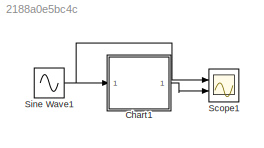
MODEL slx_2188a0e5bc4c
KIND model
CONFIG AbsTol = auto
CONFIG FixedStep = auto
CONFIG MaxStep = auto
CONFIG MinStep = auto
CONFIG RelTol = 1e-3
CONFIG SampleTimeConstraint = Unconstrained
CONFIG Solver = VariableStepAuto
CONFIG SolverMode = Auto
CONFIG SolverName = VariableStepAuto
CONFIG StartTime = 0.0
CONFIG StopTime = 10.0
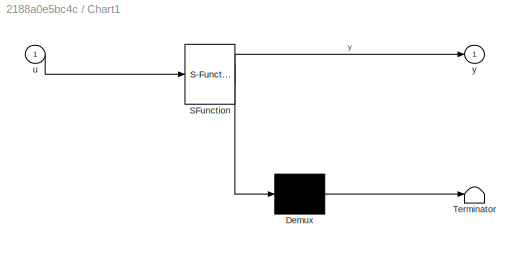
BLOCK [SubSystem] Chart1
  ErrorFcn = Stateflow.Translate.translate
  PermitHierarchicalResolution = ExplicitOnly
  Ports = [1, 1]
  RequestExecContextInheritance = off
  SFBlockType = Chart
  TreatAsAtomicUnit = on
  Variant = off
BLOCK [Demux] Chart1/ Demux 
  Outputs = 1
  Ports = [1, 1]
BLOCK [S-Function] Chart1/ SFunction 
  EnableBusSupport = on
  FunctionName = sf_sfun
  PortCounts = [1 2]
  Ports = [1, 2]
  SFunctionDeploymentMode = off
  Tag = Stateflow S-Function stateflow_junction 1
BLOCK [Terminator] Chart1/ Terminator 
BLOCK [Inport] Chart1/u
  IconDisplay = Port number
BLOCK [Outport] Chart1/y
  IconDisplay = Port number
BLOCK [Scope] Scope1
  NumInputPorts = 2
  Ports = [2]
  ScopeSpecificationString = C++SS(StrPVP('SaveName','ScopeData1'),StrPVP('LimitDataPoints','on'),StrPVP('DataFormat','Array'),StrPVP('Decimation','1'),StrPVP('BlockParamSampleInput','off'))
BLOCK [Sin] Sine Wave1
  Ports = [0, 1]
  SampleTime = 0
LINE Chart1:1 -> Scope1:2
NET Sine Wave1:1 -> Chart1:1, Scope1:1
note: NET lines group one-source signal fan-out (src -> all destinations, sorted); 1:1 wires keep LINE
CHART Chart1 states=5 transitions=10
  STATE_LABEL 'ON\nentry: y=1;'
  STATE_LABEL 'OFF\nentry: y=-1;'
  STATE_LABEL 'VERY_OFF\nentry: y=-3;'
  STATE_LABEL 'UNKNOWN\nentry: y=0'
  STATE_LABEL 'history junction'
